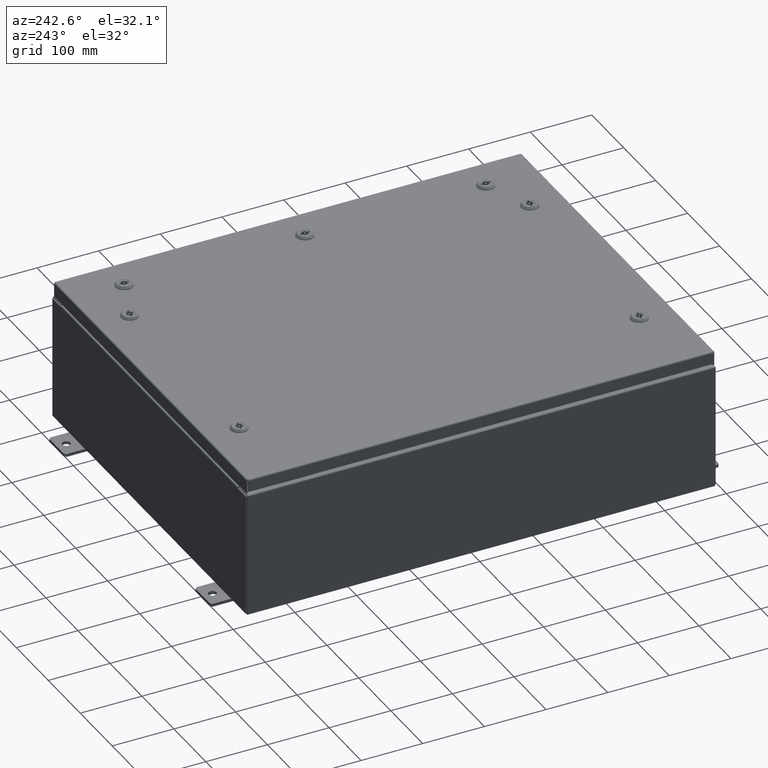
[diagram: clean part render]
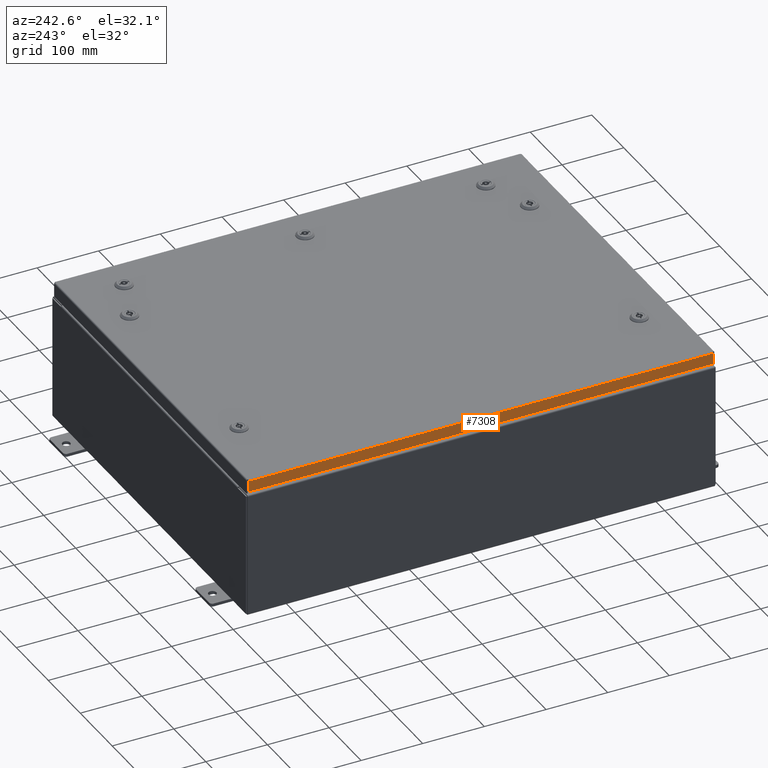
[diagram: same view with one face highlighted and labeled with its STEP entity id]
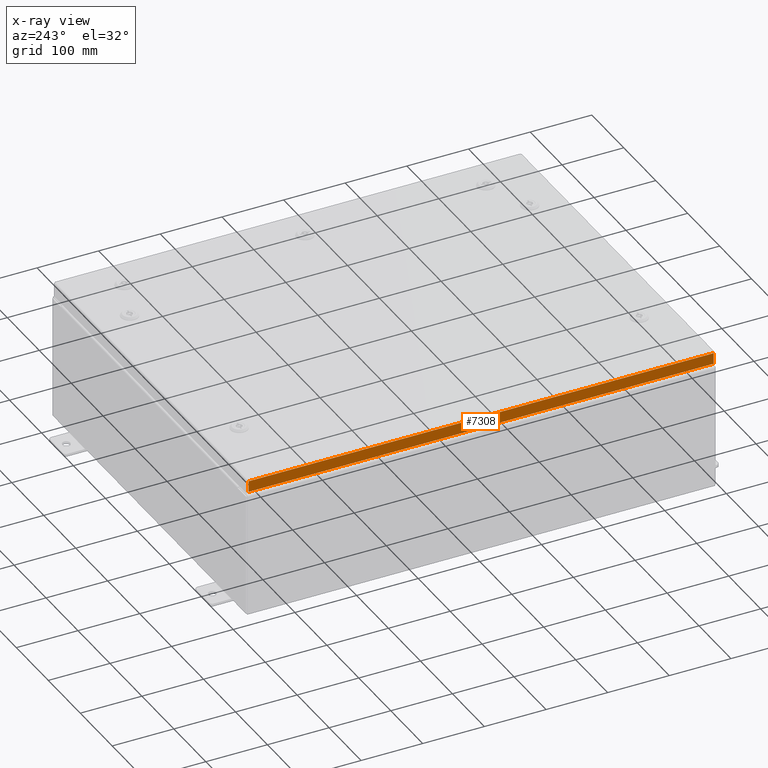
[diagram: x-ray of the same camera — body ghosted, the highlighted face saturated]
A machine part, auxiliary view. The second image highlights one B-rep face of the part: STEP entity #7308.
The next image is the same camera in x-ray: the body ghosted, the highlighted face saturated — about 0% of this face is hidden behind the body in this view.
In plain terms, the highlighted planar face has unit normal (1, 0, -0).
Its self-contained STEP definition (entity closure, byte-faithful):
#928 = VERTEX_POINT ( 'NONE', #23193 ) ;
#1197 = DIRECTION ( 'NONE',  ( 3.745549041839940000E-031, -1.000000000000000000, -1.104117517615176400E-045 ) ) ;
#1323 = ORIENTED_EDGE ( 'NONE', *, *, #45490, .F. ) ;
#2239 = FACE_OUTER_BOUND ( 'NONE', #36301, .T. ) ;
#6293 = CARTESIAN_POINT ( 'NONE',  ( -11.93750000000000200, -14.93749999999999500, -0.7949999999999997100 ) ) ;
#7308 = ADVANCED_FACE ( 'NONE', ( #2239 ), #21196, .F. ) ;
#10380 = VERTEX_POINT ( 'NONE', #17477 ) ;
#10677 = DIRECTION ( 'NONE',  ( -3.034122441942816500E-015, 6.982962677686265900E-015, -1.000000000000000000 ) ) ;
#10839 = ORIENTED_EDGE ( 'NONE', *, *, #59709, .F. ) ;
#13394 = EDGE_CURVE ( 'NONE', #31119, #928, #58529, .T. ) ;
#13859 = CARTESIAN_POINT ( 'NONE',  ( -11.93750000000000000, 14.84865786437627100, 1.401682739873761500E-013 ) ) ;
#17477 = CARTESIAN_POINT ( 'NONE',  ( -11.93750000000000200, 14.84865786437627800, -0.7949999999999960400 ) ) ;
#19045 = LINE ( 'NONE', #13859, #32157 ) ;
#21196 = PLANE ( 'NONE',  #54104 ) ;
#22487 = CARTESIAN_POINT ( 'NONE',  ( -11.93750000000000000, -4.471249168696428000E-030, 3.648065030670395400E-014 ) ) ;
#23193 = CARTESIAN_POINT ( 'NONE',  ( -11.93750000000000200, -14.84865786437626100, -0.7949999999999996000 ) ) ;
#23420 = CARTESIAN_POINT ( 'NONE',  ( -11.93750000000000000, -14.84865786437626200, -0.08770000000000007000 ) ) ;
#31119 = VERTEX_POINT ( 'NONE', #23420 ) ;
#32157 = VECTOR ( 'NONE', #43524, 39.37007874015748100 ) ;
#34191 = LINE ( 'NONE', #6293, #35737 ) ;
#35317 = CARTESIAN_POINT ( 'NONE',  ( -11.93750000000000000, -14.84865786437626400, -0.07469999999999976700 ) ) ;
#35737 = VECTOR ( 'NONE', #45271, 39.37007874015748100 ) ;
#36301 = EDGE_LOOP ( 'NONE', ( #1323, #37841, #10839, #62567 ) ) ;
#36576 = DIRECTION ( 'NONE',  ( 1.000000000000000000, 3.745549041839939100E-031, -3.034122441942816500E-015 ) ) ;
#37841 = ORIENTED_EDGE ( 'NONE', *, *, #45844, .T. ) ;
#43080 = VECTOR ( 'NONE', #1197, 39.37007874015748100 ) ;
#43524 = DIRECTION ( 'NONE',  ( -3.034122441942816500E-015, 6.982962677686265900E-015, -1.000000000000000000 ) ) ;
#44879 = CARTESIAN_POINT ( 'NONE',  ( -11.93750000000000000, 14.84865786437627100, -0.08770000000000004200 ) ) ;
#45271 = DIRECTION ( 'NONE',  ( 4.379057701015054300E-047, 1.000000000000000000, 1.234475243998914400E-016 ) ) ;
#45363 = VECTOR ( 'NONE', #10677, 39.37007874015748100 ) ;
#45490 = EDGE_CURVE ( 'NONE', #56043, #31119, #46193, .T. ) ;
#45844 = EDGE_CURVE ( 'NONE', #56043, #10380, #19045, .T. ) ;
#46193 = LINE ( 'NONE', #59870, #43080 ) ;
#54104 = AXIS2_PLACEMENT_3D ( 'NONE', #22487, #36576, #62990 ) ;
#56043 = VERTEX_POINT ( 'NONE', #44879 ) ;
#58529 = LINE ( 'NONE', #35317, #45363 ) ;
#59709 = EDGE_CURVE ( 'NONE', #928, #10380, #34191, .T. ) ;
#59870 = CARTESIAN_POINT ( 'NONE',  ( -11.93750000000000000, -14.93749999999999500, -0.08770000000000004200 ) ) ;
#62567 = ORIENTED_EDGE ( 'NONE', *, *, #13394, .F. ) ;
#62990 = DIRECTION ( 'NONE',  ( -3.034122441942816500E-015, 0.0000000000000000000, -1.000000000000000000 ) ) ;